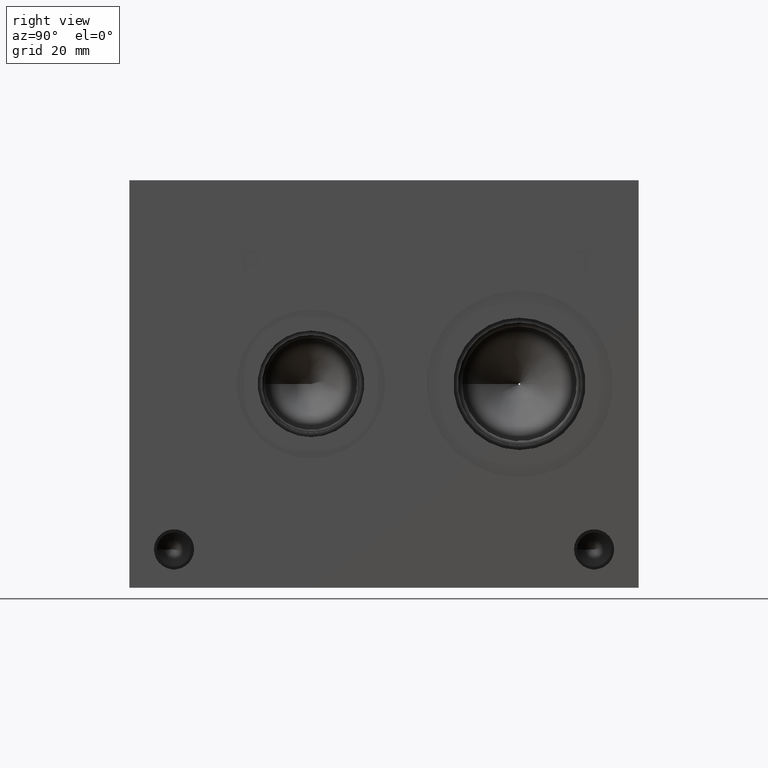
[diagram: clean part render]
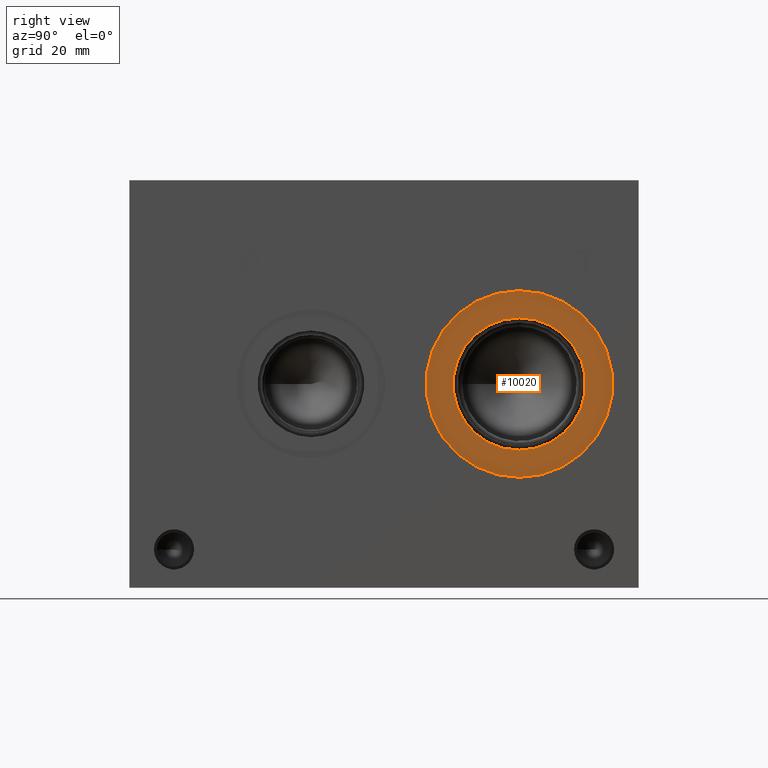
[diagram: same view with one face highlighted and labeled with its STEP entity id]
A machine part, right view. The second image highlights one B-rep face of the part: STEP entity #10020.
In plain terms, the highlighted planar face has unit normal (-1, 0, 0).
Its self-contained STEP definition (entity closure, byte-faithful):
#131=CIRCLE('',#10471,23.2791);
#132=CIRCLE('',#10472,23.2791);
#133=CIRCLE('',#10474,16.4973);
#134=CIRCLE('',#10475,16.4973);
#302=FACE_BOUND('',#1651,.T.);
#624=PLANE('',#10473);
#1084=FACE_OUTER_BOUND('',#1650,.T.);
#1650=EDGE_LOOP('',(#8663,#8664));
#1651=EDGE_LOOP('',(#8665,#8666));
#4759=VERTEX_POINT('',#16843);
#4760=VERTEX_POINT('',#16845);
#4761=VERTEX_POINT('',#16849);
#4762=VERTEX_POINT('',#16850);
#6104=EDGE_CURVE('',#4759,#4760,#131,.T.);
#6105=EDGE_CURVE('',#4760,#4759,#132,.T.);
#6106=EDGE_CURVE('',#4761,#4762,#133,.T.);
#6107=EDGE_CURVE('',#4762,#4761,#134,.T.);
#8663=ORIENTED_EDGE('',*,*,#6105,.F.);
#8664=ORIENTED_EDGE('',*,*,#6104,.F.);
#8665=ORIENTED_EDGE('',*,*,#6106,.T.);
#8666=ORIENTED_EDGE('',*,*,#6107,.T.);
#10020=ADVANCED_FACE('',(#1084,#302),#624,.F.);
#10471=AXIS2_PLACEMENT_3D('',#16846,#12305,#12306);
#10472=AXIS2_PLACEMENT_3D('',#16847,#12307,#12308);
#10473=AXIS2_PLACEMENT_3D('',#16848,#12309,#12310);
#10474=AXIS2_PLACEMENT_3D('',#16851,#12311,#12312);
#10475=AXIS2_PLACEMENT_3D('',#16852,#12313,#12314);
#12305=DIRECTION('center_axis',(-1.,0.,0.));
#12306=DIRECTION('ref_axis',(0.,0.,1.));
#12307=DIRECTION('center_axis',(-1.,0.,0.));
#12308=DIRECTION('ref_axis',(0.,0.,1.));
#12309=DIRECTION('center_axis',(-1.,0.,0.));
#12310=DIRECTION('ref_axis',(0.,0.,1.));
#12311=DIRECTION('center_axis',(-1.,0.,0.));
#12312=DIRECTION('ref_axis',(0.,0.,1.));
#12313=DIRECTION('center_axis',(-1.,0.,0.));
#12314=DIRECTION('ref_axis',(0.,0.,1.));
#16843=CARTESIAN_POINT('',(81.7626,97.2566,74.0791));
#16845=CARTESIAN_POINT('',(81.7626,97.2566,27.5209));
#16846=CARTESIAN_POINT('Origin',(81.7626,97.2566,50.8));
#16847=CARTESIAN_POINT('Origin',(81.7626,97.2566,50.8));
#16848=CARTESIAN_POINT('Origin',(81.7626,97.2566,34.3027));
#16849=CARTESIAN_POINT('',(81.7626,97.2566,34.3027));
#16850=CARTESIAN_POINT('',(81.7626,97.2566,67.2973));
#16851=CARTESIAN_POINT('Origin',(81.7626,97.2566,50.8));
#16852=CARTESIAN_POINT('Origin',(81.7626,97.2566,50.8));